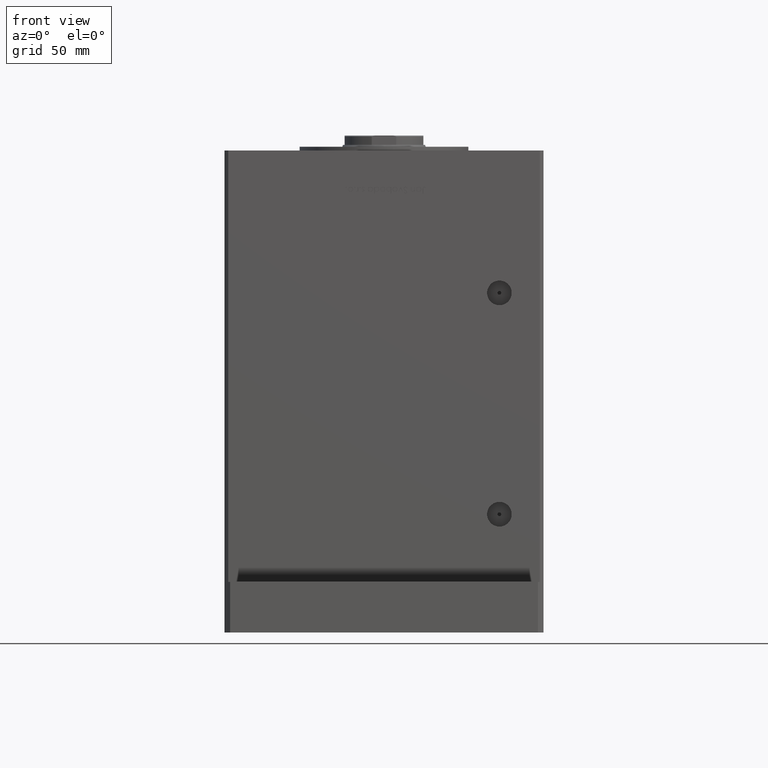
[diagram: clean part render]
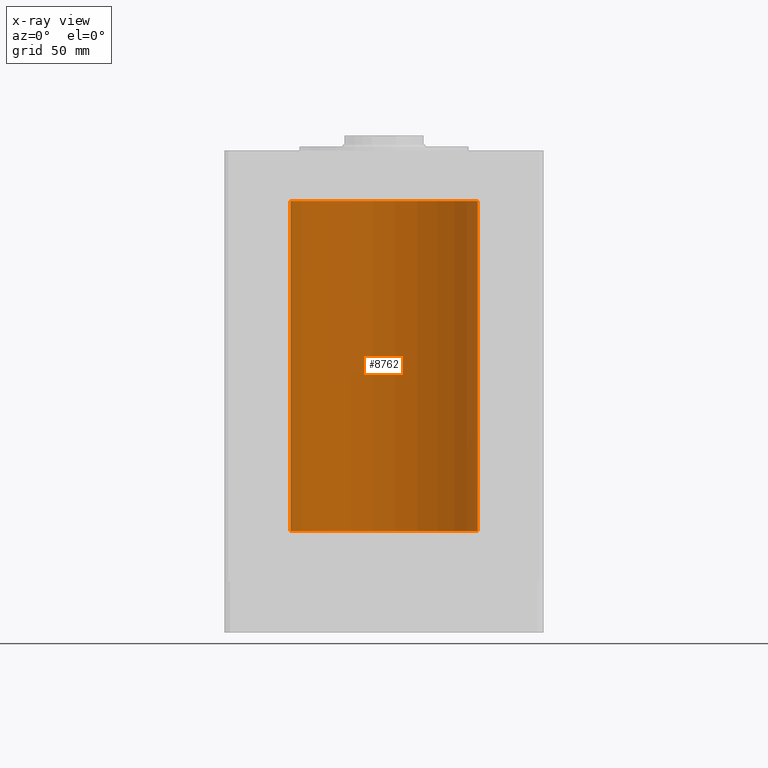
[diagram: x-ray — body ghosted, one internal face saturated and labeled with its STEP entity id]
A machine part, front view, then the same camera in x-ray: the body is ghosted and one INTERNAL B-rep face — a face not visible from any outside direction — is saturated and labeled: STEP entity #8762.
In plain terms, the highlighted cylindrical surface (partial cylindrical patch) has radius 50 mm, axis along (-0, -0, -1).
Its self-contained STEP definition (entity closure, byte-faithful):
#149 = CARTESIAN_POINT ( 'NONE',  ( -50.00000000000000000, 0.000000000000000000, 0.000000000000000000 ) ) ;
#243 = VERTEX_POINT ( 'NONE', #7444 ) ;
#349 = CARTESIAN_POINT ( 'NONE',  ( 0.000000000000000000, 0.000000000000000000, 176.0000000000000000 ) ) ;
#1487 = EDGE_CURVE ( 'NONE', #42831, #20775, #34731, .T. ) ;
#2461 = CARTESIAN_POINT ( 'NONE',  ( 50.00000000000000000, 6.123233995736766085E-15, 176.0000000000000000 ) ) ;
#3525 = ORIENTED_EDGE ( 'NONE', *, *, #10337, .F. ) ;
#6962 = DIRECTION ( 'NONE',  ( -0.000000000000000000, 0.000000000000000000, 1.000000000000000000 ) ) ;
#7444 = CARTESIAN_POINT ( 'NONE',  ( 50.00000000000000000, 6.123233995736766085E-15, 0.000000000000000000 ) ) ;
#8762 = ADVANCED_FACE ( 'NONE', ( #30850 ), #48263, .F. ) ;
#10337 = EDGE_CURVE ( 'NONE', #10755, #243, #42109, .T. ) ;
#10755 = VERTEX_POINT ( 'NONE', #31364 ) ;
#14284 = DIRECTION ( 'NONE',  ( -0.000000000000000000, -0.000000000000000000, -1.000000000000000000 ) ) ;
#16427 = EDGE_LOOP ( 'NONE', ( #3525, #25462, #34427, #38940 ) ) ;
#17083 = AXIS2_PLACEMENT_3D ( 'NONE', #36738, #45032, #23602 ) ;
#17085 = VECTOR ( 'NONE', #51300, 1000.000000000000000 ) ;
#18569 = DIRECTION ( 'NONE',  ( -1.000000000000000000, 0.000000000000000000, 0.000000000000000000 ) ) ;
#20775 = VERTEX_POINT ( 'NONE', #149 ) ;
#22302 = EDGE_CURVE ( 'NONE', #10755, #42831, #28785, .T. ) ;
#23602 = DIRECTION ( 'NONE',  ( 1.000000000000000000, 0.000000000000000000, 0.000000000000000000 ) ) ;
#25462 = ORIENTED_EDGE ( 'NONE', *, *, #22302, .T. ) ;
#28350 = CARTESIAN_POINT ( 'NONE',  ( 0.000000000000000000, 0.000000000000000000, 0.000000000000000000 ) ) ;
#28785 = CIRCLE ( 'NONE', #17083, 50.00000000000000000 ) ;
#28965 = DIRECTION ( 'NONE',  ( -0.000000000000000000, -0.000000000000000000, -1.000000000000000000 ) ) ;
#29398 = CIRCLE ( 'NONE', #42154, 50.00000000000000000 ) ;
#30850 = FACE_OUTER_BOUND ( 'NONE', #16427, .T. ) ;
#31364 = CARTESIAN_POINT ( 'NONE',  ( 50.00000000000000000, 6.123233995736766085E-15, 176.0000000000000000 ) ) ;
#31653 = CARTESIAN_POINT ( 'NONE',  ( -50.00000000000000000, 0.000000000000000000, 176.0000000000000000 ) ) ;
#33886 = CARTESIAN_POINT ( 'NONE',  ( -50.00000000000000000, 0.000000000000000000, 176.0000000000000000 ) ) ;
#34427 = ORIENTED_EDGE ( 'NONE', *, *, #1487, .T. ) ;
#34731 = LINE ( 'NONE', #33886, #17085 ) ;
#36738 = CARTESIAN_POINT ( 'NONE',  ( 0.000000000000000000, 0.000000000000000000, 176.0000000000000000 ) ) ;
#38940 = ORIENTED_EDGE ( 'NONE', *, *, #42481, .F. ) ;
#40040 = VECTOR ( 'NONE', #28965, 1000.000000000000000 ) ;
#40912 = AXIS2_PLACEMENT_3D ( 'NONE', #349, #14284, #18569 ) ;
#42109 = LINE ( 'NONE', #2461, #40040 ) ;
#42154 = AXIS2_PLACEMENT_3D ( 'NONE', #28350, #6962, #46324 ) ;
#42481 = EDGE_CURVE ( 'NONE', #243, #20775, #29398, .T. ) ;
#42831 = VERTEX_POINT ( 'NONE', #31653 ) ;
#45032 = DIRECTION ( 'NONE',  ( -0.000000000000000000, 0.000000000000000000, 1.000000000000000000 ) ) ;
#46324 = DIRECTION ( 'NONE',  ( 1.000000000000000000, 0.000000000000000000, 0.000000000000000000 ) ) ;
#48263 = CYLINDRICAL_SURFACE ( 'NONE', #40912, 50.00000000000000000 ) ;
#51300 = DIRECTION ( 'NONE',  ( -0.000000000000000000, -0.000000000000000000, -1.000000000000000000 ) ) ;